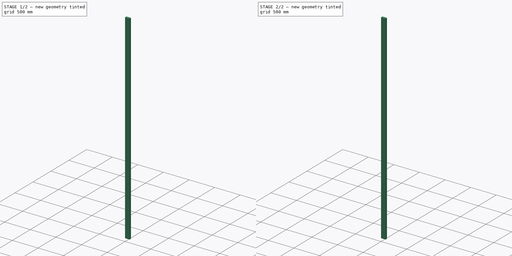
[diagram: build sequence overview — one tinted view per stage of 2, left to right]
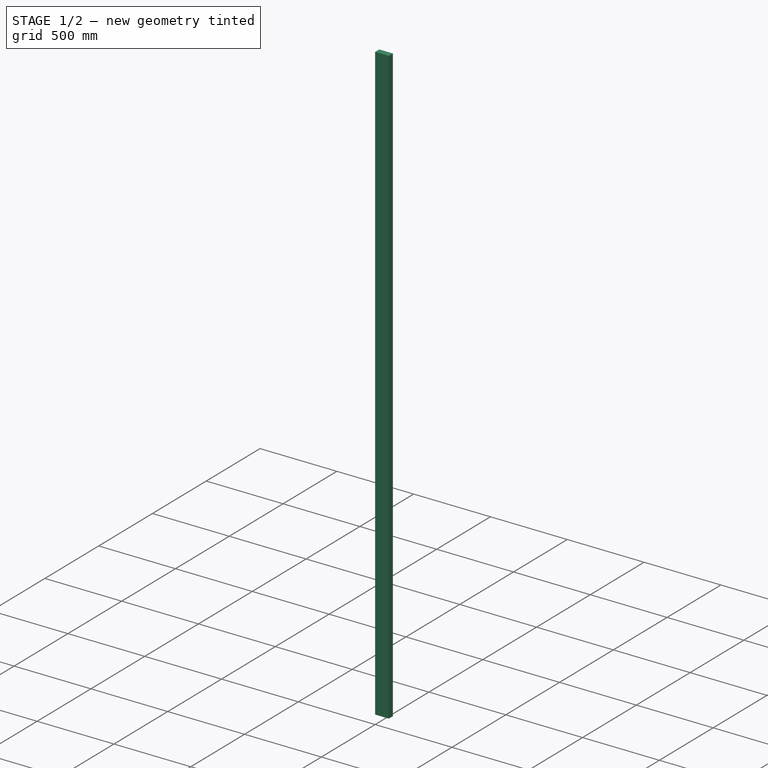
[diagram: stage 1 of 2 — iso view after this stage's code; geometry added in this stage tinted green]
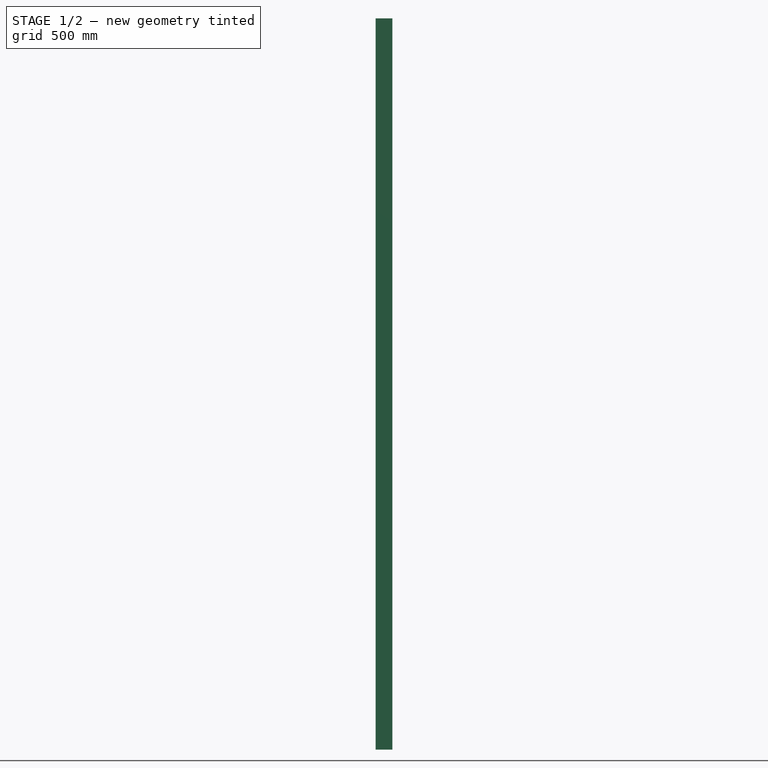
[diagram: stage 1 of 2 — front view after this stage's code; geometry added in this stage tinted green]
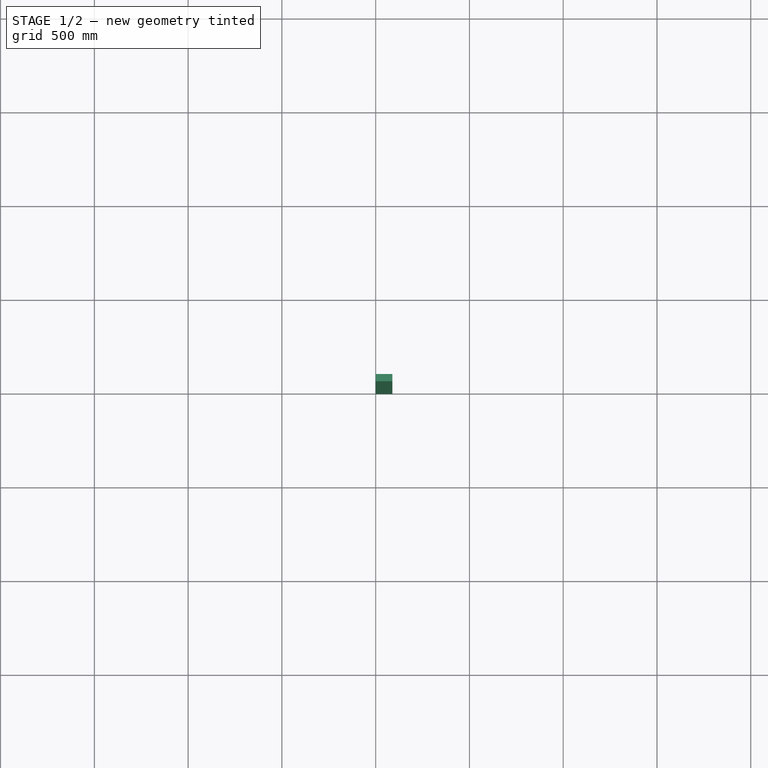
[diagram: stage 1 of 2 — top view after this stage's code; geometry added in this stage tinted green]
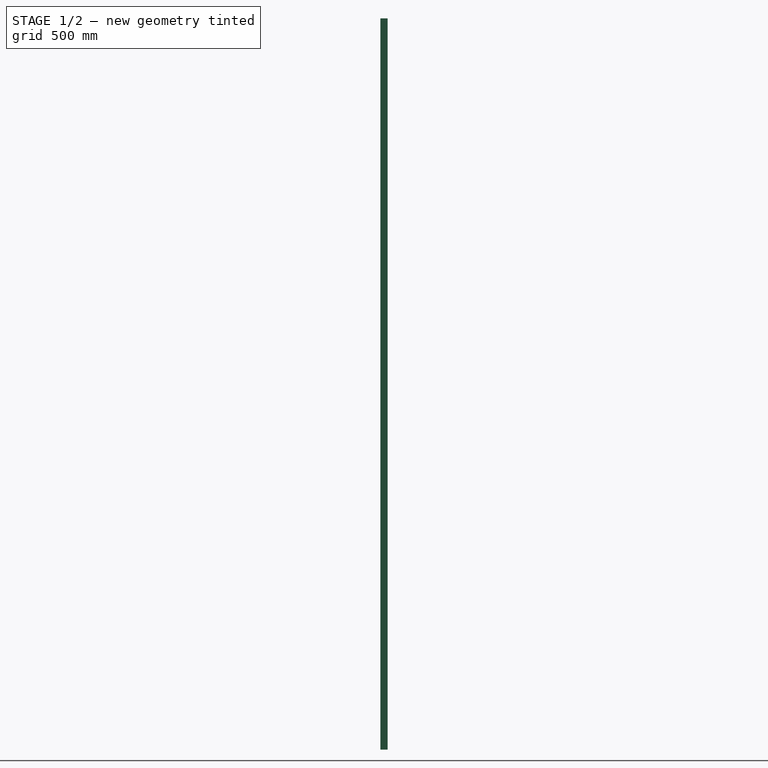
[diagram: stage 1 of 2 — right view after this stage's code; geometry added in this stage tinted green]
FCSTD DOCUMENT  (FreeCAD 2023.131R26244 +5365 (Git))
Label: Frame
License: All rights reserved
LicenseURL: http://en.wikipedia.org/wiki/All_rights_reserved
objects: App::FeaturePython×70, Part::FeaturePython×43, App::Link×19, Sketcher::SketchObject×3, PartDesign::Pad×3, PartDesign::Body×3, App::Part×3
note: 58 computed .brp shape members not serialized (recipe doc carries the construction recipe); baked Part::Feature solids carry a one-line shape summary decoded from their .brp
EXTERNAL_REF file=../1110z-Extrusions-Timbers/verticalTimber.FCStd obj=Part
EXTERNAL_REF file=../1112z-Plates/woodJoiningPlate.FCStd obj=Part

FEATURE [App::Link] Link  label="verticalTimber-Part"
  AutoLinkLabel = false
  AutoPlacement = true
  LinkedObject = -> <external ../1110z-Extrusions-Timbers/verticalTimber.FCStd>#Part
  SyncGroupVisibility = false
  TreeRank = 0
  _LinkOwner = 4
  _LinkVersion = 1
FEATURE [App::Link] Link001  label="verticalTimber-Part001"
  AutoLinkLabel = false
  AutoPlacement = true
  LinkPlacement = pos=(1371.6,-2.66e-14,-1.179e-13) rot=(0,0,1;0rad)
  LinkedObject = -> <external ../1110z-Extrusions-Timbers/verticalTimber.FCStd>#Part
  Placement = pos=(1371.6,-2.66e-14,-1.179e-13) rot=(0,0,1;0rad)
  SyncGroupVisibility = false
  TreeRank = 0
  _LinkOwner = 4
  _LinkVersion = 1
FEATURE [App::Link] Link002  label="verticalTimber-Part002"
  AutoLinkLabel = false
  AutoPlacement = true
  LinkPlacement = pos=(2679.7,-1.108e-13,-1.502e-13) rot=(0,0,1;0rad)
  LinkedObject = -> <external ../1110z-Extrusions-Timbers/verticalTimber.FCStd>#Part
  Placement = pos=(2679.7,-1.108e-13,-1.502e-13) rot=(0,0,1;0rad)
  SyncGroupVisibility = false
  TreeRank = 0
  _LinkOwner = 4
  _LinkVersion = 1
FEATURE [App::Link] Link003  label="verticalTimber-Part003"
  AutoLinkLabel = false
  AutoPlacement = true
  LinkPlacement = pos=(3810,-1.05e-13,-3.575e-13) rot=(0,0,1;0rad)
  LinkedObject = -> <external ../1110z-Extrusions-Timbers/verticalTimber.FCStd>#Part
  Placement = pos=(3810,-1.05e-13,-3.575e-13) rot=(0,0,1;0rad)
  SyncGroupVisibility = false
  TreeRank = 0
  _LinkOwner = 4
  _LinkVersion = 1
FEATURE [App::Link] Link004  label="verticalTimber-Part004"
  AutoLinkLabel = false
  AutoPlacement = true
  LinkPlacement = pos=(-0.620478,-419.1,0.0255773) rot=(0,-1,0;6.28261rad)
  LinkedObject = -> <external ../1110z-Extrusions-Timbers/verticalTimber.FCStd>#Part
  Placement = pos=(-0.620478,-419.1,0.0255773) rot=(0,-1,0;6.28261rad)
  SyncGroupVisibility = false
  TreeRank = 0
  _LinkOwner = 4
  _LinkVersion = 1
FEATURE [App::Link] Link005  label="verticalTimber-Part005"
  AutoLinkLabel = false
  AutoPlacement = true
  LinkPlacement = pos=(-3.01966,-1370.88,-2.491e-13) rot=(0,0,1;0.003066rad)
  LinkedObject = -> <external ../1110z-Extrusions-Timbers/verticalTimber.FCStd>#Part
  Placement = pos=(-3.01966,-1370.88,-2.491e-13) rot=(0,0,1;0.003066rad)
  SyncGroupVisibility = false
  TreeRank = 0
  _LinkOwner = 4
  _LinkVersion = 1
FEATURE [App::Link] Link006  label="verticalTimber-Part006"
  AutoLinkLabel = false
  AutoPlacement = true
  LinkPlacement = pos=(3810,-419.1,-2.15192) rot=(0,1,0;0.000571rad)
  LinkedObject = -> <external ../1110z-Extrusions-Timbers/verticalTimber.FCStd>#Part
  Placement = pos=(3810,-419.1,-2.15192) rot=(0,1,0;0.000571rad)
  SyncGroupVisibility = false
  TreeRank = 0
  _LinkOwner = 4
  _LinkVersion = 1
FEATURE [App::Link] Link007  label="verticalTimber-Part007"
  AutoLinkLabel = false
  AutoPlacement = true
  LinkPlacement = pos=(3814.3,-1359.17,4.7742e-12) rot=(0,-3e-06,1;0.003066rad)
  LinkedObject = -> <external ../1110z-Extrusions-Timbers/verticalTimber.FCStd>#Part
  Placement = pos=(3814.3,-1359.17,4.7742e-12) rot=(0,-3e-06,1;0.003066rad)
  SyncGroupVisibility = false
  TreeRank = 0
  _LinkOwner = 4
  _LinkVersion = 1
FEATURE [App::Link] Link008  label="verticalTimber-Part008"
  AutoLinkLabel = false
  AutoPlacement = true
  LinkPlacement = pos=(38.1,-3416.3,-2.5181e-11) rot=(0,0,-1;4.71239rad)
  LinkedObject = -> <external ../1110z-Extrusions-Timbers/verticalTimber.FCStd>#Part
  Placement = pos=(38.1,-3416.3,-2.5181e-11) rot=(0,0,-1;4.71239rad)
  SyncGroupVisibility = false
  TreeRank = 0
  _LinkOwner = 4
  _LinkVersion = 1
FEATURE [App::Link] Link009  label="verticalTimber-Part009"
  AutoLinkLabel = false
  AutoPlacement = true
  LinkPlacement = pos=(3886.2,-3327.4,3.5941e-11) rot=(0,0,-1;1.5708rad)
  LinkedObject = -> <external ../1110z-Extrusions-Timbers/verticalTimber.FCStd>#Part
  Placement = pos=(3886.2,-3327.4,3.5941e-11) rot=(0,0,-1;1.5708rad)
  SyncGroupVisibility = false
  TreeRank = 0
  _LinkOwner = 4
  _LinkVersion = 1
FEATURE [Part::FeaturePython] Parts  # WARN: FeaturePython — macro-defined, semantics opaque (R4)
  FixShape = 1
  Group = -> [Link,Link001,Link002,Link003,Link004,Link005,Link006,Link007,Link008,Link009]
  GroupMode = 0
  InvalidShape = false
  TreeRank = 0
  ValidateShape = false
  _LinkVersion = 1
FEATURE [App::FeaturePython] Constraints001  # WARN: FeaturePython — macro-defined, semantics opaque (R4)
  TreeRank = 0
  _LinkVersion = 1
  _Version = 1
FEATURE [App::FeaturePython] Elements001  # WARN: FeaturePython — macro-defined, semantics opaque (R4)
  TreeRank = 0
  _LinkVersion = 1
FEATURE [App::FeaturePython] Constraints002  # WARN: FeaturePython — macro-defined, semantics opaque (R4)
  TreeRank = 0
  _LinkVersion = 1
  _Version = 1
FEATURE [App::FeaturePython] Elements002  # WARN: FeaturePython — macro-defined, semantics opaque (R4)
  TreeRank = 0
  _LinkVersion = 1
FEATURE [Sketcher::SketchObject] Sketch
  ArcFitTolerance = 1e-06
  ExternalBSplineMaxDegree = 5
  ExternalBSplineTolerance = 0.0001
  FixShape = 1
  FullyConstrained = true
  InternalTolerance = 1e-06
  InvalidShape = false
  MakeInternals = false
  MapMode = 2
  TreeRank = 11
  ValidateShape = false
  sketch-geometry (4):
    g0: LineSegment StartX=0 StartY=0 StartZ=0 EndX=88.9 EndY=0 EndZ=0
    g1: LineSegment StartX=88.9 StartY=0 StartZ=0 EndX=88.9 EndY=38.1 EndZ=0
    g2: LineSegment StartX=88.9 StartY=38.1 StartZ=0 EndX=0 EndY=38.1 EndZ=0
    g3: LineSegment StartX=0 StartY=38.1 StartZ=0 EndX=0 EndY=0 EndZ=0
  constraints (11):
    c: Coincident(g0,g1)
    c: Coincident(g1,g2)
    c: Coincident(g2,g3)
    c: Coincident(g3,g0)
    c: Horizontal(g0)
    c: Horizontal(g2)
    c: Vertical(g1)
    c: Vertical(g3)
    c: Coincident(g0,g-1)
    c: DistanceY(g1,g1) = 38.1
    c: DistanceX(g2,g2) = 88.9
FEATURE [PartDesign::Pad] Pad
  AddSubType = 0
  AlongSketchNormal = false
  AutoTaperInnerAngle = true
  CheckUpToFaceLimits = true
  ClaimChildren = false
  Direction = (0,0,1)
  Fit = 0
  FitJoin = 0
  FixShape = 1
  InnerFit = 0
  InnerFitJoin = 0
  InvalidShape = false
  Length = 3479.8
  Length2 = 100
  Linearize = true
  NewSolid = false
  Profile = -> Sketch
  Suppress = false
  TaperInnerAngle = 0
  TaperInnerAngleRev = 0
  TreeRank = 12
  Type = 0
  ValidateShape = false
  _ProfileBasedVersion = 1
FEATURE [PartDesign::Body] Body
  AutoGroupSolids = false
  ClaimAllChildren = false
  ExportMode = 0
  FixShape = 1
  Group = -> [Sketch,Pad]
  InvalidShape = false
  Origin = -> Origin
  Tip = -> Pad
  TreeRank = 10
  ValidateShape = false
  _ExportChildren = -> [Pad]
  _GroupVersion = 1
FEATURE [App::Part] Part  label="topTimberPart"
  ClaimAllChildren = false
  ExportMode = 1
  Group = -> [Body]
  Origin = -> Origin001
  Placement = pos=(0,38.0997,2171.7) rot=(1,0,0;1.5708rad)
  TreeRank = 15
  _ExportChildren = -> [Body]
  _GroupVersion = 1
FEATURE [Sketcher::SketchObject] Sketch001
  ArcFitTolerance = 1e-06
  ExternalBSplineMaxDegree = 5
  ExternalBSplineTolerance = 0.0001
  FixShape = 1
  FullyConstrained = true
  InternalTolerance = 1e-06
  InvalidShape = false
  MakeInternals = false
  MapMode = 2
  TreeRank = 11
  ValidateShape = false
  sketch-geometry (4):
    g0: LineSegment StartX=0 StartY=0 StartZ=0 EndX=88.9 EndY=0 EndZ=0
    g1: LineSegment StartX=88.9 StartY=0 StartZ=0 EndX=88.9 EndY=38.1 EndZ=0
    g2: LineSegment StartX=88.9 StartY=38.1 StartZ=0 EndX=0 EndY=38.1 EndZ=0
    g3: LineSegment StartX=0 StartY=38.1 StartZ=0 EndX=0 EndY=0 EndZ=0
  constraints (11):
    c: Coincident(g0,g1)
    c: Coincident(g1,g2)
    c: Coincident(g2,g3)
    c: Coincident(g3,g0)
    c: Horizontal(g0)
    c: Horizontal(g2)
    c: Vertical(g1)
    c: Vertical(g3)
    c: Coincident(g0,g-1)
    c: DistanceY(g1,g1) = 38.1
    c: DistanceX(g2,g2) = 88.9
FEATURE [PartDesign::Pad] Pad001
  AddSubType = 0
  AlongSketchNormal = false
  AutoTaperInnerAngle = true
  CheckUpToFaceLimits = true
  ClaimChildren = false
  Direction = (0,0,1)
  Fit = 0
  FitJoin = 0
  FixShape = 1
  InnerFit = 0
  InnerFitJoin = 0
  InvalidShape = false
  Length = 3479.8
  Length2 = 100
  Linearize = true
  NewSolid = false
  Profile = -> Sketch001
  Suppress = false
  TaperInnerAngle = 0
  TaperInnerAngleRev = 0
  TreeRank = 12
  Type = 0
  ValidateShape = false
  _ProfileBasedVersion = 1
FEATURE [PartDesign::Body] Body001
  AutoGroupSolids = false
  ClaimAllChildren = false
  ExportMode = 0
  FixShape = 1
  Group = -> [Sketch001,Pad001]
  InvalidShape = false
  Origin = -> Origin002
  Tip = -> Pad001
  TreeRank = 16
  ValidateShape = false
  _ExportChildren = -> [Pad001]
  _GroupVersion = 1
FEATURE [App::Part] Part001  label="topTimberPart001"
  ClaimAllChildren = false
  ExportMode = 1
  Group = -> [Body001]
  Origin = -> Origin003
  Placement = pos=(3810,38.0993,2171.7) rot=(1,0,0;1.5708rad)
  TreeRank = 18
  _ExportChildren = -> [Body001]
  _GroupVersion = 1
FEATURE [Part::FeaturePython] Parts001  # WARN: FeaturePython — macro-defined, semantics opaque (R4)
  FixShape = 1
  Group = -> [Part,Part001]
  GroupMode = 0
  InvalidShape = false
  TreeRank = 0
  ValidateShape = false
  _LinkVersion = 1
FEATURE [Part::FeaturePython] Assembly001  label="Frame-topTimber"  # WARN: FeaturePython — macro-defined, semantics opaque (R4)
  AutoRelax = true
  BuildShape = 0
  FixShape = 1
  Freeze = false
  Group = -> [Constraints001,Elements001,Parts001]
  InvalidShape = false
  Placement = pos=(0.000195313,2.3048e-05,0.000147197) rot=(0,0,1;0rad)
  TreeRank = 0
  ValidateShape = false
  Verbose = false
  _LinkVersion = 1
  _SolverType = 1
  _Version = 1
FEATURE [Sketcher::SketchObject] Sketch002
  ArcFitTolerance = 1e-06
  ExternalBSplineMaxDegree = 5
  ExternalBSplineTolerance = 0.0001
  FixShape = 1
  FullyConstrained = true
  InternalTolerance = 1e-06
  InvalidShape = false
  MakeInternals = false
  MapMode = 2
  TreeRank = 32
  ValidateShape = false
  sketch-geometry (4):
    g0: LineSegment StartX=0 StartY=0 StartZ=0 EndX=88.9 EndY=0 EndZ=0
    g1: LineSegment StartX=88.9 StartY=0 StartZ=0 EndX=88.9 EndY=38.1 EndZ=0
    g2: LineSegment StartX=88.9 StartY=38.1 StartZ=0 EndX=0 EndY=38.1 EndZ=0
    g3: LineSegment StartX=0 StartY=38.1 StartZ=0 EndX=0 EndY=0 EndZ=0
  constraints (11):
    c: Coincident(g0,g1)
    c: Coincident(g1,g2)
    c: Coincident(g2,g3)
    c: Coincident(g3,g0)
    c: Horizontal(g0)
    c: Horizontal(g2)
    c: Vertical(g1)
    c: Vertical(g3)
    c: Coincident(g0,g-1)
    c: DistanceY(g1,g1) = 38.1
    c: DistanceX(g0,g0) = 88.9
FEATURE [PartDesign::Pad] Pad002
  AddSubType = 0
  AlongSketchNormal = false
  AutoTaperInnerAngle = true
  CheckUpToFaceLimits = true
  ClaimChildren = false
  Direction = (0,0,1)
  Fit = 0
  FitJoin = 0
  FixShape = 1
  InnerFit = 0
  InnerFitJoin = 0
  InvalidShape = false
  Length = 3898.9
  Length2 = 100
  Linearize = true
  NewSolid = false
  Profile = -> Sketch002
  Suppress = false
  TaperInnerAngle = 0
  TaperInnerAngleRev = 0
  TreeRank = 33
  Type = 0
  ValidateShape = false
  _ProfileBasedVersion = 1
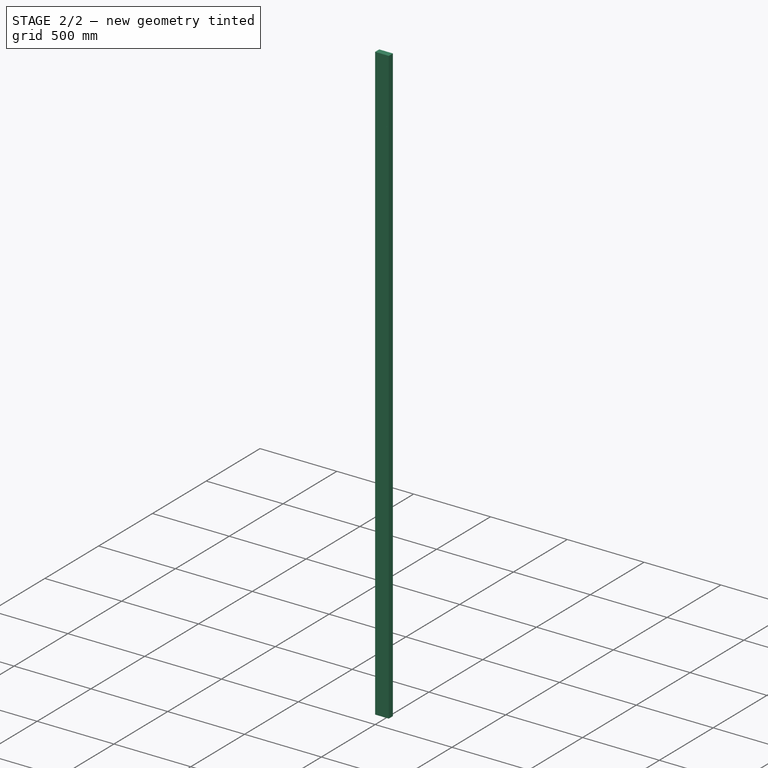
[diagram: stage 2 of 2 — iso view after this stage's code; geometry added in this stage tinted green]
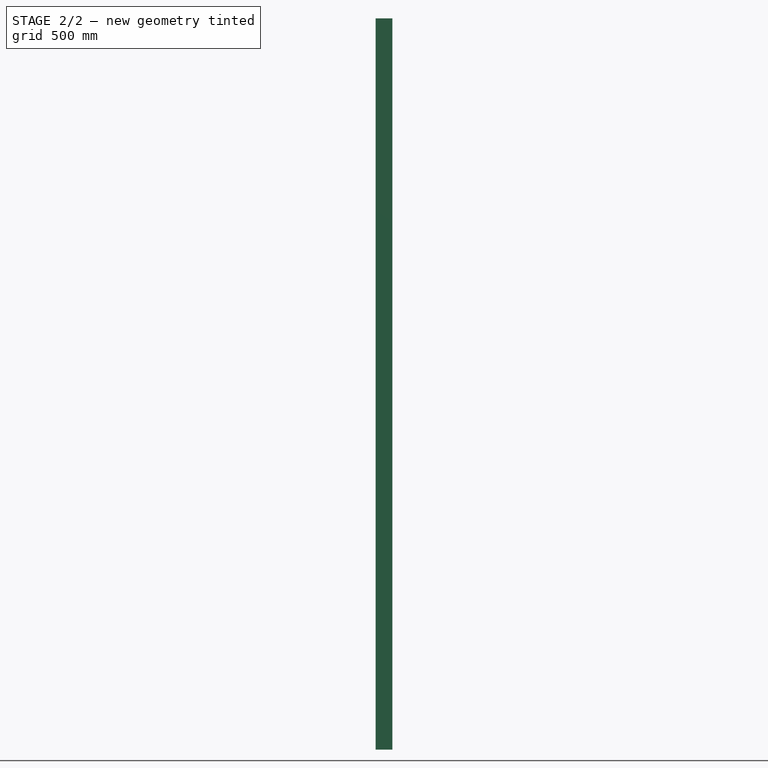
[diagram: stage 2 of 2 — front view after this stage's code; geometry added in this stage tinted green]
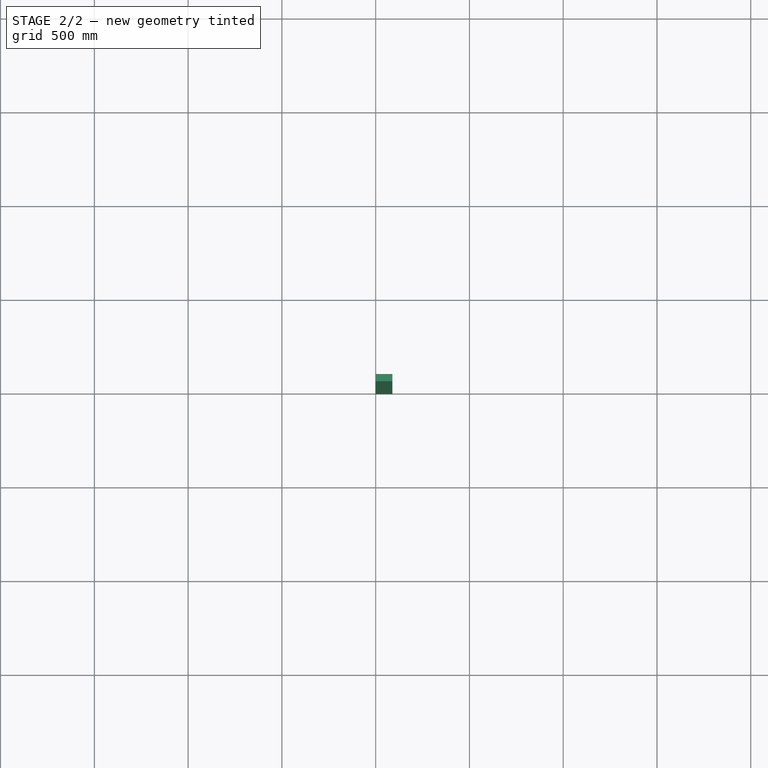
[diagram: stage 2 of 2 — top view after this stage's code; geometry added in this stage tinted green]
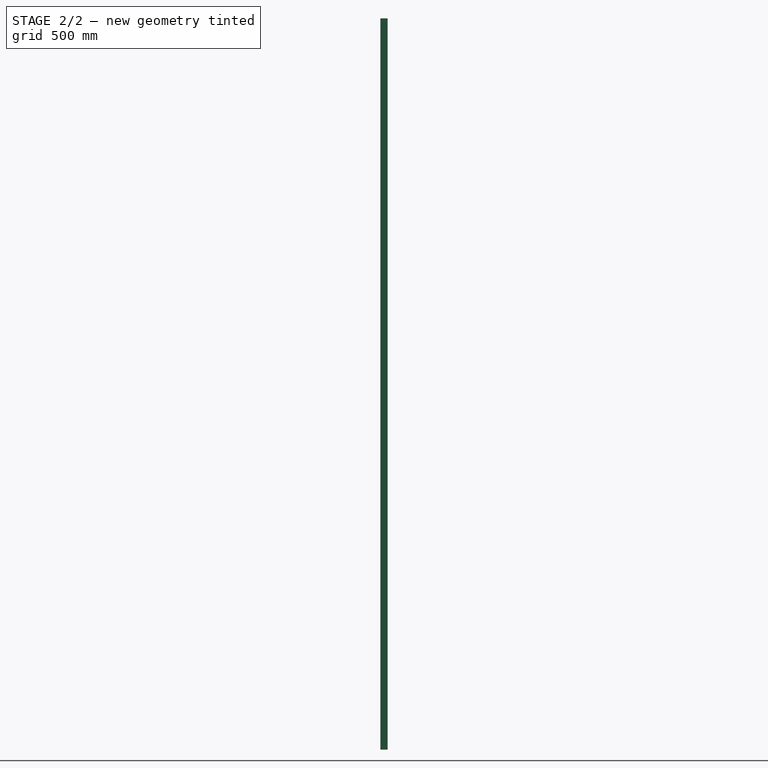
[diagram: stage 2 of 2 — right view after this stage's code; geometry added in this stage tinted green]
FEATURE [PartDesign::Body] Body002
  AutoGroupSolids = false
  ClaimAllChildren = false
  ExportMode = 0
  FixShape = 1
  Group = -> [Sketch002,Pad002]
  InvalidShape = false
  Origin = -> Origin005
  Tip = -> Pad002
  TreeRank = 31
  ValidateShape = false
  _ExportChildren = -> [Pad002]
  _GroupVersion = 1
FEATURE [App::Part] Part002  label="Frame-backTimber-Part"
  ClaimAllChildren = false
  ExportMode = 1
  Group = -> [Body002]
  Origin = -> Origin004
  Placement = pos=(0.000258887,-57.1497,2171.7) rot=(0,1,0;1.5708rad)
  TreeRank = 21
  _ExportChildren = -> [Body002]
  _GroupVersion = 1
FEATURE [App::Link] Link010  label="woodJoiningPlate-Part"
  AutoLinkLabel = false
  AutoPlacement = true
  LinkPlacement = pos=(0,-0.000149882,1257.3) rot=(1,0,0;1.5708rad)
  LinkedObject = -> <external ../1112z-Plates/woodJoiningPlate.FCStd>#Part
  Placement = pos=(0,-0.000149882,1257.3) rot=(1,0,0;1.5708rad)
  SyncGroupVisibility = false
  TreeRank = 34
  _LinkOwner = 157
  _LinkVersion = 1
FEATURE [App::Link] Link011  label="woodJoiningPlate-Part001"
  AutoLinkLabel = false
  AutoPlacement = true
  LinkPlacement = pos=(1003.3,-0.000149882,1257.3) rot=(1,0,0;1.5708rad)
  LinkedObject = -> <external ../1112z-Plates/woodJoiningPlate.FCStd>#Part
  Placement = pos=(1003.3,-0.000149882,1257.3) rot=(1,0,0;1.5708rad)
  SyncGroupVisibility = false
  TreeRank = 35
  _LinkOwner = 157
  _LinkVersion = 1
FEATURE [App::Link] Link012  label="woodJoiningPlate-Part002"
  AutoLinkLabel = false
  AutoPlacement = true
  LinkPlacement = pos=(2679.7,-0.000149882,1257.3) rot=(1,0,0;1.5708rad)
  LinkedObject = -> <external ../1112z-Plates/woodJoiningPlate.FCStd>#Part
  Placement = pos=(2679.7,-0.000149882,1257.3) rot=(1,0,0;1.5708rad)
  SyncGroupVisibility = false
  TreeRank = 36
  _LinkOwner = 157
  _LinkVersion = 1
FEATURE [App::Link] Link013  label="woodJoiningPlate-Part003"
  AutoLinkLabel = false
  AutoPlacement = true
  LinkPlacement = pos=(4.54189e-06,38.0998,1295.4) rot=(-0.57735,0.57735,0.57735;4.18879rad)
  LinkedObject = -> <external ../1112z-Plates/woodJoiningPlate.FCStd>#Part
  Placement = pos=(4.54189e-06,38.0998,1295.4) rot=(-0.57735,0.57735,0.57735;4.18879rad)
  SyncGroupVisibility = false
  TreeRank = 37
  _LinkOwner = 157
  _LinkVersion = 1
FEATURE [App::Link] Link014  label="woodJoiningPlate-Part004"
  AutoLinkLabel = false
  AutoPlacement = true
  LinkPlacement = pos=(-0.000372434,-1365.25,1752.6) rot=(0,-1,0;1.5708rad)
  LinkedObject = -> <external ../1112z-Plates/woodJoiningPlate.FCStd>#Part
  Placement = pos=(-0.000372434,-1365.25,1752.6) rot=(0,-1,0;1.5708rad)
  SyncGroupVisibility = false
  TreeRank = 38
  _LinkOwner = 157
  _LinkVersion = 1
FEATURE [App::Link] Link015  label="woodJoiningPlate-Part005"
  AutoLinkLabel = false
  AutoPlacement = true
  LinkPlacement = pos=(3441.7,-0.000135604,1257.3) rot=(1,0,0;1.5708rad)
  LinkedObject = -> <external ../1112z-Plates/woodJoiningPlate.FCStd>#Part
  Placement = pos=(3441.7,-0.000135604,1257.3) rot=(1,0,0;1.5708rad)
  SyncGroupVisibility = false
  TreeRank = 39
  _LinkOwner = 157
  _LinkVersion = 1
FEATURE [App::Link] Link016  label="woodJoiningPlate-Part006"
  AutoLinkLabel = false
  AutoPlacement = true
  LinkPlacement = pos=(3917.95,38.0994,1295.4) rot=(-0.57735,0.57735,0.57735;4.18879rad)
  LinkedObject = -> <external ../1112z-Plates/woodJoiningPlate.FCStd>#Part
  Placement = pos=(3917.95,38.0994,1295.4) rot=(-0.57735,0.57735,0.57735;4.18879rad)
  SyncGroupVisibility = false
  TreeRank = 40
  _LinkOwner = 157
  _LinkVersion = 1
FEATURE [App::Link] Link017  label="woodJoiningPlate-Part007"
  AutoLinkLabel = false
  AutoPlacement = true
  LinkPlacement = pos=(-0.000352752,-2959.1,1295.4) rot=(-0.57735,0.57735,0.57735;4.18879rad)
  LinkedObject = -> <external ../1112z-Plates/woodJoiningPlate.FCStd>#Part
  Placement = pos=(-0.000352752,-2959.1,1295.4) rot=(-0.57735,0.57735,0.57735;4.18879rad)
  SyncGroupVisibility = false
  TreeRank = 41
  _LinkOwner = 157
  _LinkVersion = 1
FEATURE [App::Link] Link018  label="woodJoiningPlate-Part008"
  AutoLinkLabel = false
  AutoPlacement = true
  LinkPlacement = pos=(3921.12,-1358.9,1758.95) rot=(0,1,0;4.71239rad)
  LinkedObject = -> <external ../1112z-Plates/woodJoiningPlate.FCStd>#Part
  Placement = pos=(3921.12,-1358.9,1758.95) rot=(0,1,0;4.71239rad)
  SyncGroupVisibility = false
  TreeRank = 42
  _LinkOwner = 157
  _LinkVersion = 1
FEATURE [Part::FeaturePython] Assembly  label="Frame-verticalTimber-Assembly"  # WARN: FeaturePython — macro-defined, semantics opaque (R4)
  AutoRelax = true
  BuildShape = 0
  FixShape = 1
  Freeze = false
  Group = -> [Constraints,Elements,Parts,Relations]
  InvalidShape = false
  TreeRank = 0
  ValidateShape = false
  Verbose = false
  _LinkVersion = 1
  _SolverType = 1
  _Version = 1
FEATURE [App::FeaturePython] Constraints  # WARN: FeaturePython — macro-defined, semantics opaque (R4)
  Group = -> [Constraint,Constraint002,Constraint004,Constraint005,Constraint006,Constraint007,Constraint012,Constraint013,Constraint015,Constraint016,Constraint017,Constraint018,Constraint019,Constraint020,Constraint021,Constraint022,Constraint023]
  TreeRank = 0
  _LinkVersion = 1
  _Version = 1
FEATURE [App::FeaturePython] Elements  # WARN: FeaturePython — macro-defined, semantics opaque (R4)
  Group = -> [_Element,_Element001,_Element002,_Element003,_Element004,_Element005,_Element006,_Element007,_Element008,_Element009,_Element010,_Element011,_Element012,_Element013,_Element014,_Element015,_Element016,_Element017,_Element018,_Element019,_Element020,_Element021,_Element022,_Element023,_Element024,_Element025,_Element026,_Element027,_Element028,_Element029,_Element030,_Element031,_Element032,+4 more]
  TreeRank = 0
  _LinkVersion = 1
FEATURE [App::FeaturePython] Constraint  label="Locked"  # WARN: FeaturePython — macro-defined, semantics opaque (R4)
  Disabled = false
  Group = -> [ElementLink]
  TreeRank = 0
  _ConstraintType = 0
  _LinkVersion = 1
  _Parent = -> Constraints
FEATURE [App::FeaturePython] ElementLink  label="_Element"  # link proxy (typed FeaturePython)
  LinkTransform = true
  LinkedObject = -> _Element
  TreeRank = 0
  _LinkVersion = 1
  _Parent = -> Constraint
FEATURE [Part::FeaturePython] _Element  # link proxy (typed FeaturePython)
  Detach = false
  FixShape = 1
  InvalidShape = false
  LinkTransform = true
  LinkedObject = -> Link [Body.Pad.Face5]
  TreeRank = 0
  ValidateShape = false
  _LinkVersion = 1
  _Parent = -> Elements
FEATURE [Part::FeaturePython] _Element001  # link proxy (typed FeaturePython)
  Detach = false
  FixShape = 1
  InvalidShape = false
  LinkTransform = true
  LinkedObject = -> Link004 [Body.Pad.Face5]
  TreeRank = 0
  ValidateShape = false
  _LinkVersion = 1
  _Parent = -> Elements
FEATURE [Part::FeaturePython] _Element002  # link proxy (typed FeaturePython)
  Detach = false
  FixShape = 1
  InvalidShape = false
  LinkTransform = true
  LinkedObject = -> Link005 [Body.Pad.Face5]
  TreeRank = 0
  ValidateShape = false
  _LinkVersion = 1
  _Parent = -> Elements
FEATURE [Part::FeaturePython] _Element003  # link proxy (typed FeaturePython)
  Detach = false
  FixShape = 1
  InvalidShape = false
  LinkTransform = true
  LinkedObject = -> Link008 [Body.Pad.Face5]
  TreeRank = 0
  ValidateShape = false
  _LinkVersion = 1
  _Parent = -> Elements
FEATURE [Part::FeaturePython] _Element004  # link proxy (typed FeaturePython)
  Detach = false
  FixShape = 1
  InvalidShape = false
  LinkTransform = true
  LinkedObject = -> Link001 [Body.Pad.Face5]
  TreeRank = 0
  ValidateShape = false
  _LinkVersion = 1
  _Parent = -> Elements
FEATURE [Part::FeaturePython] _Element005  # link proxy (typed FeaturePython)
  Detach = false
  FixShape = 1
  InvalidShape = false
  LinkTransform = true
  LinkedObject = -> Link002 [Body.Pad.Face5]
  TreeRank = 0
  ValidateShape = false
  _LinkVersion = 1
  _Parent = -> Elements
FEATURE [Part::FeaturePython] _Element006  # link proxy (typed FeaturePython)
  Detach = false
  FixShape = 1
  InvalidShape = false
  LinkTransform = true
  LinkedObject = -> Link003 [Body.Pad.Face5]
  TreeRank = 0
  ValidateShape = false
  _LinkVersion = 1
  _Parent = -> Elements
FEATURE [Part::FeaturePython] _Element007  # link proxy (typed FeaturePython)
  Detach = false
  FixShape = 1
  InvalidShape = false
  LinkTransform = true
  LinkedObject = -> Link006 [Body.Pad.Face5]
  TreeRank = 0
  ValidateShape = false
  _LinkVersion = 1
  _Parent = -> Elements
FEATURE [Part::FeaturePython] _Element008  # link proxy (typed FeaturePython)
  Detach = false
  FixShape = 1
  InvalidShape = false
  LinkTransform = true
  LinkedObject = -> Link007 [Body.Pad.Face5]
  TreeRank = 0
  ValidateShape = false
  _LinkVersion = 1
  _Parent = -> Elements
FEATURE [Part::FeaturePython] _Element009  # link proxy (typed FeaturePython)
  Detach = false
  FixShape = 1
  InvalidShape = false
  LinkTransform = true
  LinkedObject = -> Link009 [Body.Pad.Face5]
  TreeRank = 0
  ValidateShape = false
  _LinkVersion = 1
  _Parent = -> Elements
FEATURE [App::FeaturePython] Constraint002  label="PlaneAlignment001"  # WARN: FeaturePython — macro-defined, semantics opaque (R4)
  Angle = 0
  AnglePitch = 0
  AngleRoll = 0
  Cascade = false
  Disabled = false
  Group = -> [ElementLink011,ElementLink012,ElementLink013,ElementLink014]
  LockAngle = false
  TreeRank = 0
  _ConstraintType = 37
  _LinkVersion = 1
  _Parent = -> Constraints
FEATURE [App::FeaturePython] ElementLink011  label="_Element010"  # link proxy (typed FeaturePython)
  LinkTransform = true
  LinkedObject = -> _Element010
  TreeRank = 0
  _LinkVersion = 1
  _Parent = -> Constraint002
FEATURE [Part::FeaturePython] _Element010  # link proxy (typed FeaturePython)
  Detach = false
  FixShape = 1
  InvalidShape = false
  LinkTransform = true
  LinkedObject = -> Link003 [Body.Pad.Face3]
  TreeRank = 0
  ValidateShape = false
  _LinkVersion = 1
  _Parent = -> Elements
FEATURE [App::FeaturePython] ElementLink012  label="_Element011"  # link proxy (typed FeaturePython)
  LinkTransform = true
  LinkedObject = -> _Element011
  TreeRank = 0
  _LinkVersion = 1
  _Parent = -> Constraint002
FEATURE [Part::FeaturePython] _Element011  # link proxy (typed FeaturePython)
  Detach = false
  FixShape = 1
  InvalidShape = false
  LinkTransform = true
  LinkedObject = -> Link002 [Body.Pad.Face3]
  TreeRank = 0
  ValidateShape = false
  _LinkVersion = 1
  _Parent = -> Elements
FEATURE [App::FeaturePython] ElementLink013  label="_Element012"  # link proxy (typed FeaturePython)
  LinkTransform = true
  LinkedObject = -> _Element012
  TreeRank = 0
  _LinkVersion = 1
  _Parent = -> Constraint002
FEATURE [Part::FeaturePython] _Element012  # link proxy (typed FeaturePython)
  Detach = false
  FixShape = 1
  InvalidShape = false
  LinkTransform = true
  LinkedObject = -> Link001 [Body.Pad.Face3]
  TreeRank = 0
  ValidateShape = false
  _LinkVersion = 1
  _Parent = -> Elements
FEATURE [App::FeaturePython] ElementLink014  label="_Element013"  # link proxy (typed FeaturePython)
  LinkTransform = true
  LinkedObject = -> _Element013
  TreeRank = 0
  _LinkVersion = 1
  _Parent = -> Constraint002
FEATURE [Part::FeaturePython] _Element013  # link proxy (typed FeaturePython)
  Detach = false
  FixShape = 1
  InvalidShape = false
  LinkTransform = true
  LinkedObject = -> Link [Body.Pad.Face3]
  TreeRank = 0
  ValidateShape = false
  _LinkVersion = 1
  _Parent = -> Elements
FEATURE [Part::FeaturePython] _Element014  # link proxy (typed FeaturePython)
  Detach = false
  FixShape = 1
  InvalidShape = false
  LinkTransform = true
  LinkedObject = -> Link004 [Body.Pad.Face3]
  TreeRank = 0
  ValidateShape = false
  _LinkVersion = 1
  _Parent = -> Elements
FEATURE [Part::FeaturePython] _Element015  # link proxy (typed FeaturePython)
  Detach = false
  FixShape = 1
  InvalidShape = false
  LinkTransform = true
  LinkedObject = -> Link006 [Body.Pad.Face3]
  TreeRank = 0
  ValidateShape = false
  _LinkVersion = 1
  _Parent = -> Elements
FEATURE [App::FeaturePython] Constraint004  label="PlaneAlignment003"  # WARN: FeaturePython — macro-defined, semantics opaque (R4)
  Angle = 0
  AnglePitch = 0
  AngleRoll = 0
  Cascade = false
  Disabled = false
  Group = -> [ElementLink017,ElementLink018]
  LockAngle = false
  TreeRank = 0
  _ConstraintType = 37
  _LinkVersion = 1
  _Parent = -> Constraints
FEATURE [App::FeaturePython] ElementLink017  label="_Element016"  # link proxy (typed FeaturePython)
  LinkTransform = true
  LinkedObject = -> _Element016
  TreeRank = 0
  _LinkVersion = 1
  _Parent = -> Constraint004
FEATURE [Part::FeaturePython] _Element016  # link proxy (typed FeaturePython)
  Detach = false
  FixShape = 1
  InvalidShape = false
  LinkTransform = true
  LinkedObject = -> Link005 [Body.Pad.Face3]
  TreeRank = 0
  ValidateShape = false
  _LinkVersion = 1
  _Parent = -> Elements
FEATURE [App::FeaturePython] ElementLink018  label="_Element017"  # link proxy (typed FeaturePython)
  LinkTransform = true
  LinkedObject = -> _Element017
  TreeRank = 0
  _LinkVersion = 1
  _Parent = -> Constraint004
FEATURE [Part::FeaturePython] _Element017  # link proxy (typed FeaturePython)
  Detach = false
  FixShape = 1
  InvalidShape = false
  LinkTransform = true
  LinkedObject = -> Link007 [Body.Pad.Face3]
  TreeRank = 0
  ValidateShape = false
  _LinkVersion = 1
  _Parent = -> Elements
FEATURE [Part::FeaturePython] _Element018  # link proxy (typed FeaturePython)
  Detach = false
  FixShape = 1
  InvalidShape = false
  LinkTransform = true
  LinkedObject = -> Link003 [Body.Pad.Vertex5]
  TreeRank = 0
  ValidateShape = false
  _LinkVersion = 1
  _Parent = -> Elements
FEATURE [Part::FeaturePython] _Element019  # link proxy (typed FeaturePython)
  Detach = false
  FixShape = 1
  InvalidShape = false
  LinkTransform = true
  LinkedObject = -> Link [Body.Pad.Face4]
  TreeRank = 0
  ValidateShape = false
  _LinkVersion = 1
  _Parent = -> Elements
FEATURE [App::FeaturePython] Constraint005  label="PointsPlaneDistance"  # WARN: FeaturePython — macro-defined, semantics opaque (R4)
  Disabled = false
  Distance = 3898.9
  Group = -> [ElementLink019,ElementLink020]
  TreeRank = 0
  _ConstraintType = 7
  _LinkVersion = 1
  _Parent = -> Constraints
FEATURE [App::FeaturePython] ElementLink019  label="_Element020"  # link proxy (typed FeaturePython)
  LinkTransform = true
  LinkedObject = -> _Element020
  TreeRank = 0
  _LinkVersion = 1
  _Parent = -> Constraint005
FEATURE [Part::FeaturePython] _Element020  # link proxy (typed FeaturePython)
  Detach = false
  FixShape = 1
  InvalidShape = false
  LinkTransform = true
  LinkedObject = -> Link [Body.Pad.Vertex7]
  TreeRank = 0
  ValidateShape = false
  _LinkVersion = 1
  _Parent = -> Elements
FEATURE [App::FeaturePython] ElementLink020  label="_Element021"  # link proxy (typed FeaturePython)
  LinkTransform = true
  LinkedObject = -> _Element021
  TreeRank = 0
  _LinkVersion = 1
  _Parent = -> Constraint005
FEATURE [Part::FeaturePython] _Element021  # link proxy (typed FeaturePython)
  Detach = false
  FixShape = 1
  InvalidShape = false
  LinkTransform = true
  LinkedObject = -> Link003 [Body.Pad.Face2]
  TreeRank = 0
  ValidateShape = false
  _LinkVersion = 1
  _Parent = -> Elements
FEATURE [App::FeaturePython] Constraint006  label="PointsPlaneDistance001"  # WARN: FeaturePython — macro-defined, semantics opaque (R4)
  Disabled = false
  Distance = 3898.9
  Group = -> [ElementLink021,ElementLink022]
  TreeRank = 0
  _ConstraintType = 7
  _LinkVersion = 1
  _Parent = -> Constraints
FEATURE [App::FeaturePython] ElementLink021  label="_Element020"  # link proxy (typed FeaturePython)
  LinkTransform = true
  LinkedObject = -> _Element020
  TreeRank = 0
  _LinkVersion = 1
  _Parent = -> Constraint006
FEATURE [App::FeaturePython] ElementLink022  label="_Element022"  # link proxy (typed FeaturePython)
  LinkTransform = true
  LinkedObject = -> _Element022
  TreeRank = 0
  _LinkVersion = 1
  _Parent = -> Constraint006
FEATURE [Part::FeaturePython] _Element022  # link proxy (typed FeaturePython)
  Detach = false
  FixShape = 1
  InvalidShape = false
  LinkTransform = true
  LinkedObject = -> Link006 [Body.Pad.Face2]
  TreeRank = 0
  ValidateShape = false
  _LinkVersion = 1
  _Parent = -> Elements
FEATURE [App::FeaturePython] Constraint007  label="PointsPlaneDistance002"  # WARN: FeaturePython — macro-defined, semantics opaque (R4)
  Disabled = false
  Distance = 3898.9
  Group = -> [ElementLink023,ElementLink024]
  TreeRank = 0
  _ConstraintType = 7
  _LinkVersion = 1
  _Parent = -> Constraints
FEATURE [App::FeaturePython] ElementLink023  label="_Element020"  # link proxy (typed FeaturePython)
  LinkTransform = true
  LinkedObject = -> _Element020
  TreeRank = 0
  _LinkVersion = 1
  _Parent = -> Constraint007
FEATURE [App::FeaturePython] ElementLink024  label="_Element023"  # link proxy (typed FeaturePython)
  LinkTransform = true
  LinkedObject = -> _Element023
  TreeRank = 0
  _LinkVersion = 1
  _Parent = -> Constraint007
FEATURE [Part::FeaturePython] _Element023  # link proxy (typed FeaturePython)
  Detach = false
  FixShape = 1
  InvalidShape = false
  LinkTransform = true
  LinkedObject = -> Link007 [Body.Pad.Face2]
  TreeRank = 0
  ValidateShape = false
  _LinkVersion = 1
  _Parent = -> Elements
FEATURE [Part::FeaturePython] _Element024  # link proxy (typed FeaturePython)
  Detach = false
  FixShape = 1
  InvalidShape = false
  LinkTransform = true
  LinkedObject = -> Link009 [Body.Pad.Face4]
  TreeRank = 0
  ValidateShape = false
  _LinkVersion = 1
  _Parent = -> Elements
FEATURE [Part::FeaturePython] _Element025  # link proxy (typed FeaturePython)
  Detach = false
  FixShape = 1
  InvalidShape = false
  LinkTransform = true
  LinkedObject = -> Link008 [Body.Pad.Face4]
  TreeRank = 0
  ValidateShape = false
  _LinkVersion = 1
  _Parent = -> Elements
FEATURE [Part::FeaturePython] _Element026  # link proxy (typed FeaturePython)
  Detach = false
  FixShape = 1
  InvalidShape = false
  LinkTransform = true
  LinkedObject = -> Link009 [Body.Pad.Face3]
  TreeRank = 0
  ValidateShape = false
  _LinkVersion = 1
  _Parent = -> Elements
FEATURE [Part::FeaturePython] _Element027  # link proxy (typed FeaturePython)
  Detach = false
  FixShape = 1
  InvalidShape = false
  LinkTransform = true
  LinkedObject = -> Link008 [Body.Pad.Face1]
  TreeRank = 0
  ValidateShape = false
  _LinkVersion = 1
  _Parent = -> Elements
FEATURE [App::FeaturePython] Constraint012  label="PointsPlaneDistance005"  # WARN: FeaturePython — macro-defined, semantics opaque (R4)
  Disabled = false
  Distance = 1219.2
  Group = -> [ElementLink035,ElementLink036]
  TreeRank = 0
  _ConstraintType = 7
  _LinkVersion = 1
  _Parent = -> Constraints
FEATURE [App::FeaturePython] ElementLink035  label="_Element028"  # link proxy (typed FeaturePython)
  LinkTransform = true
  LinkedObject = -> _Element028
  TreeRank = 0
  _LinkVersion = 1
  _Parent = -> Constraint012
FEATURE [Part::FeaturePython] _Element028  # link proxy (typed FeaturePython)
  Detach = false
  FixShape = 1
  InvalidShape = false
  LinkTransform = true
  LinkedObject = -> Link002 [Body.Pad.Vertex7]
  TreeRank = 0
  ValidateShape = false
  _LinkVersion = 1
  _Parent = -> Elements
FEATURE [App::FeaturePython] ElementLink036  label="_Element021"  # link proxy (typed FeaturePython)
  LinkTransform = true
  LinkedObject = -> _Element021
  TreeRank = 0
  _LinkVersion = 1
  _Parent = -> Constraint012
FEATURE [App::FeaturePython] Constraint013  label="PointsPlaneDistance006"  # WARN: FeaturePython — macro-defined, semantics opaque (R4)
  Disabled = false
  Distance = 2438.4
  Group = -> [ElementLink037,ElementLink038]
  TreeRank = 0
  _ConstraintType = 7
  _LinkVersion = 1
  _Parent = -> Constraints
FEATURE [App::FeaturePython] ElementLink037  label="_Element029"  # link proxy (typed FeaturePython)
  LinkTransform = true
  LinkedObject = -> _Element029
  TreeRank = 0
  _LinkVersion = 1
  _Parent = -> Constraint013
FEATURE [Part::FeaturePython] _Element029  # link proxy (typed FeaturePython)
  Detach = false
  FixShape = 1
  InvalidShape = false
  LinkTransform = true
  LinkedObject = -> Link001 [Body.Pad.Vertex5]
  TreeRank = 0
  ValidateShape = false
  _LinkVersion = 1
  _Parent = -> Elements
FEATURE [App::FeaturePython] ElementLink038  label="_Element021"  # link proxy (typed FeaturePython)
  LinkTransform = true
  LinkedObject = -> _Element021
  TreeRank = 0
  _LinkVersion = 1
  _Parent = -> Constraint013
FEATURE [Part::FeaturePython] _Element030  # link proxy (typed FeaturePython)
  Detach = false
  FixShape = 1
  InvalidShape = false
  LinkTransform = true
  LinkedObject = -> Link006 [Body.Pad.Vertex5]
  TreeRank = 0
  ValidateShape = false
  _LinkVersion = 1
  _Parent = -> Elements
FEATURE [Part::FeaturePython] _Element031  # link proxy (typed FeaturePython)
  Detach = false
  FixShape = 1
  InvalidShape = false
  LinkTransform = true
  LinkedObject = -> Link003 [Body.Pad.Face1]
  TreeRank = 0
  ValidateShape = false
  _LinkVersion = 1
  _Parent = -> Elements
FEATURE [App::FeaturePython] Constraint015  label="PointsPlaneDistance008"  # WARN: FeaturePython — macro-defined, semantics opaque (R4)
  Disabled = false
  Distance = 1397
  Group = -> [ElementLink041,ElementLink042]
  TreeRank = 0
  _ConstraintType = 7
  _LinkVersion = 1
  _Parent = -> Constraints
FEATURE [App::FeaturePython] ElementLink041  label="_Element032"  # link proxy (typed FeaturePython)
  LinkTransform = true
  LinkedObject = -> _Element032
  TreeRank = 0
  _LinkVersion = 1
  _Parent = -> Constraint015
FEATURE [Part::FeaturePython] _Element032  # link proxy (typed FeaturePython)
  Detach = false
  FixShape = 1
  InvalidShape = false
  LinkTransform = true
  LinkedObject = -> Link007 [Body.Pad.Vertex3]
  TreeRank = 0
  ValidateShape = false
  _LinkVersion = 1
  _Parent = -> Elements
FEATURE [App::FeaturePython] ElementLink042  label="_Element010"  # link proxy (typed FeaturePython)
  LinkTransform = true
  LinkedObject = -> _Element010
  TreeRank = 0
  _LinkVersion = 1
  _Parent = -> Constraint015
FEATURE [App::FeaturePython] Relations  # WARN: FeaturePython — macro-defined, semantics opaque (R4)
  Constraints = -> Constraints
  Group = -> [Relation,Relation001,Relation002,Relation003,Relation004,Relation005,Relation006,Relation007,Relation008,Relation009]
  TreeRank = 0
  _LinkVersion = 1
FEATURE [App::FeaturePython] Relation  label="verticalTimber-Part"  # WARN: FeaturePython — macro-defined, semantics opaque (R4)
  Count = 0
  Group = -> [Constraint,Constraint002,Constraint005,Constraint006,Constraint007,Constraint016,Constraint019,Constraint020,Constraint021]
  Index = 0
  Part = -> Link
  TreeRank = 0
  _LinkVersion = 1
FEATURE [App::FeaturePython] Relation001  label="verticalTimber-Part001"  # WARN: FeaturePython — macro-defined, semantics opaque (R4)
  Count = 0
  Group = -> [Constraint002,Constraint013]
  Index = 0
  Part = -> Link001
  TreeRank = 0
  _LinkVersion = 1
FEATURE [App::FeaturePython] Relation002  label="verticalTimber-Part002"  # WARN: FeaturePython — macro-defined, semantics opaque (R4)
  Count = 0
  Group = -> [Constraint002,Constraint012]
  Index = 0
  Part = -> Link002
  TreeRank = 0
  _LinkVersion = 1
FEATURE [App::FeaturePython] Relation003  label="verticalTimber-Part003"  # WARN: FeaturePython — macro-defined, semantics opaque (R4)
  Count = 0
  Group = -> [Constraint002,Constraint005,Constraint012,Constraint013,Constraint015]
  Index = 0
  Part = -> Link003
  TreeRank = 0
  _LinkVersion = 1
FEATURE [App::FeaturePython] Relation004  label="verticalTimber-Part004"  # WARN: FeaturePython — macro-defined, semantics opaque (R4)
  Count = 0
  Group = -> [Constraint021,Constraint022,Constraint023]
  Index = 0
  Part = -> Link004
  TreeRank = 0
  _LinkVersion = 1
FEATURE [App::FeaturePython] Relation005  label="verticalTimber-Part005"  # WARN: FeaturePython — macro-defined, semantics opaque (R4)
  Count = 0
  Group = -> [Constraint004]
  Index = 0
  Part = -> Link005
  TreeRank = 0
  _LinkVersion = 1
FEATURE [App::FeaturePython] Relation006  label="verticalTimber-Part006"  # WARN: FeaturePython — macro-defined, semantics opaque (R4)
  Count = 0
  Group = -> [Constraint006,Constraint022,Constraint023]
  Index = 0
  Part = -> Link006
  TreeRank = 0
  _LinkVersion = 1
FEATURE [App::FeaturePython] Relation007  label="verticalTimber-Part007"  # WARN: FeaturePython — macro-defined, semantics opaque (R4)
  Count = 0
  Group = -> [Constraint004,Constraint007,Constraint015]
  Index = 0
  Part = -> Link007
  TreeRank = 0
  _LinkVersion = 1
FEATURE [App::FeaturePython] Relation008  label="verticalTimber-Part008"  # WARN: FeaturePython — macro-defined, semantics opaque (R4)
  Count = 0
  Group = -> [Constraint016,Constraint017,Constraint018,Constraint019]
  Index = 0
  Part = -> Link008
  TreeRank = 0
  _LinkVersion = 1
FEATURE [App::FeaturePython] Relation009  label="verticalTimber-Part009"  # WARN: FeaturePython — macro-defined, semantics opaque (R4)
  Count = 0
  Group = -> [Constraint016,Constraint017,Constraint018,Constraint020]
  Index = 0
  Part = -> Link009
  TreeRank = 0
  _LinkVersion = 1
FEATURE [App::FeaturePython] Constraint016  label="PlaneAlignment"  # WARN: FeaturePython — macro-defined, semantics opaque (R4)
  Angle = 0
  AnglePitch = 0
  AngleRoll = 0
  Cascade = false
  Disabled = false
  Group = -> [ElementLink043,ElementLink044,ElementLink045]
  LockAngle = false
  TreeRank = 0
  _ConstraintType = 37
  _LinkVersion = 1
  _Parent = -> Constraints
FEATURE [App::FeaturePython] ElementLink043  label="_Element009"  # link proxy (typed FeaturePython)
  LinkTransform = true
  LinkedObject = -> _Element009
  TreeRank = 0
  _LinkVersion = 1
  _Parent = -> Constraint016
FEATURE [App::FeaturePython] ElementLink044  label="_Element003"  # link proxy (typed FeaturePython)
  LinkTransform = true
  LinkedObject = -> _Element003
  TreeRank = 0
  _LinkVersion = 1
  _Parent = -> Constraint016
FEATURE [App::FeaturePython] ElementLink045  label="_Element"  # link proxy (typed FeaturePython)
  LinkTransform = true
  LinkedObject = -> _Element
  TreeRank = 0
  _LinkVersion = 1
  _Parent = -> Constraint016
FEATURE [App::FeaturePython] Constraint017  label="PlaneAlignment004"  # WARN: FeaturePython — macro-defined, semantics opaque (R4)
  Angle = 0
  AnglePitch = 0
  AngleRoll = 0
  Cascade = false
  Disabled = false
  Group = -> [ElementLink046,ElementLink047]
  LockAngle = false
  TreeRank = 0
  _ConstraintType = 37
  _LinkVersion = 1
  _Parent = -> Constraints
FEATURE [App::FeaturePython] ElementLink046  label="_Element033"  # link proxy (typed FeaturePython)
  LinkTransform = true
  LinkedObject = -> _Element033
  TreeRank = 0
  _LinkVersion = 1
  _Parent = -> Constraint017
FEATURE [Part::FeaturePython] _Element033  # link proxy (typed FeaturePython)
  Detach = false
  FixShape = 1
  InvalidShape = false
  LinkTransform = true
  LinkedObject = -> Link008 [Body.Pad.Face2]
  TreeRank = 0
  ValidateShape = false
  _LinkVersion = 1
  _Parent = -> Elements
FEATURE [App::FeaturePython] ElementLink047  label="_Element024"  # link proxy (typed FeaturePython)
  LinkTransform = true
  LinkedObject = -> _Element024
  TreeRank = 0
  _LinkVersion = 1
  _Parent = -> Constraint017
FEATURE [App::FeaturePython] Constraint018  label="PointsPlaneDistance009"  # WARN: FeaturePython — macro-defined, semantics opaque (R4)
  Disabled = false
  Distance = 3924.3
  Group = -> [ElementLink048,ElementLink049]
  TreeRank = 0
  _ConstraintType = 7
  _LinkVersion = 1
  _Parent = -> Constraints
FEATURE [App::FeaturePython] ElementLink048  label="_Element034"  # link proxy (typed FeaturePython)
  LinkTransform = true
  LinkedObject = -> _Element034
  TreeRank = 0
  _LinkVersion = 1
  _Parent = -> Constraint018
FEATURE [Part::FeaturePython] _Element034  # link proxy (typed FeaturePython)
  Detach = false
  FixShape = 1
  InvalidShape = false
  LinkTransform = true
  LinkedObject = -> Link009 [Body.Pad.Vertex5]
  TreeRank = 0
  ValidateShape = false
  _LinkVersion = 1
  _Parent = -> Elements
FEATURE [App::FeaturePython] ElementLink049  label="_Element035"  # link proxy (typed FeaturePython)
  LinkTransform = true
  LinkedObject = -> _Element035
  TreeRank = 0
  _LinkVersion = 1
  _Parent = -> Constraint018
FEATURE [Part::FeaturePython] _Element035  # link proxy (typed FeaturePython)
  Detach = false
  FixShape = 1
  InvalidShape = false
  LinkTransform = true
  LinkedObject = -> Link008 [Body.Pad.Face3]
  TreeRank = 0
  ValidateShape = false
  _LinkVersion = 1
  _Parent = -> Elements
FEATURE [App::FeaturePython] Constraint019  label="PlaneAlignment005"  # WARN: FeaturePython — macro-defined, semantics opaque (R4)
  Angle = 0
  AnglePitch = 0
  AngleRoll = 0
  Cascade = false
  Disabled = false
  Group = -> [ElementLink050,ElementLink051]
  LockAngle = false
  TreeRank = 0
  _ConstraintType = 37
  _LinkVersion = 1
  _Parent = -> Constraints
FEATURE [App::FeaturePython] ElementLink050  label="_Element035"  # link proxy (typed FeaturePython)
  LinkTransform = true
  LinkedObject = -> _Element035
  TreeRank = 0
  _LinkVersion = 1
  _Parent = -> Constraint019
FEATURE [App::FeaturePython] ElementLink051  label="_Element019"  # link proxy (typed FeaturePython)
  LinkTransform = true
  LinkedObject = -> _Element019
  TreeRank = 0
  _LinkVersion = 1
  _Parent = -> Constraint019
FEATURE [App::FeaturePython] Constraint020  label="PointsPlaneDistance010"  # WARN: FeaturePython — macro-defined, semantics opaque (R4)
  Disabled = false
  Distance = 3454.4
  Group = -> [ElementLink052,ElementLink053]
  TreeRank = 0
  _ConstraintType = 7
  _LinkVersion = 1
  _Parent = -> Constraints
FEATURE [App::FeaturePython] ElementLink052  label="_Element020"  # link proxy (typed FeaturePython)
  LinkTransform = true
  LinkedObject = -> _Element020
  TreeRank = 0
  _LinkVersion = 1
  _Parent = -> Constraint020
FEATURE [App::FeaturePython] ElementLink053  label="_Element036"  # link proxy (typed FeaturePython)
  LinkTransform = true
  LinkedObject = -> _Element036
  TreeRank = 0
  _LinkVersion = 1
  _Parent = -> Constraint020
FEATURE [Part::FeaturePython] _Element036  # link proxy (typed FeaturePython)
  Detach = false
  FixShape = 1
  InvalidShape = false
  LinkTransform = true
  LinkedObject = -> Link009 [Body.Pad.Face2]
  TreeRank = 0
  ValidateShape = false
  _LinkVersion = 1
  _Parent = -> Elements
FEATURE [Part::FeaturePython] Assembly002  label="Frame-Assembly002"  # WARN: FeaturePython — macro-defined, semantics opaque (R4)
  AutoRelax = true
  BuildShape = 0
  FixShape = 1
  Freeze = false
  Group = -> [Constraints002,Elements002,Parts002]
  InvalidShape = false
  TreeRank = 0
  ValidateShape = false
  Verbose = false
  _LinkVersion = 1
  _SolverType = 1
  _Version = 1
FEATURE [Part::FeaturePython] Parts002  # WARN: FeaturePython — macro-defined, semantics opaque (R4)
  FixShape = 1
  Group = -> [Assembly,Assembly001,Part002,Link010,Link011,Link012,Link013,Link014,Link015,Link016,Link017,Link018]
  GroupMode = 0
  InvalidShape = false
  TreeRank = 0
  ValidateShape = false
  _LinkVersion = 1
FEATURE [App::FeaturePython] Constraint021  label="PlaneCoincident"  # WARN: FeaturePython — macro-defined, semantics opaque (R4)
  Angle = 0
  AnglePitch = 0
  AngleRoll = 0
  Cascade = false
  Disabled = false
  Group = -> [ElementLink054,ElementLink055]
  LockAngle = false
  Multiply = false
  Offset = 419.1
  OffsetX = 0
  OffsetY = 0
  TreeRank = 43
  _ConstraintType = 35
  _LinkVersion = 0
  _Parent = -> Constraints
FEATURE [App::FeaturePython] ElementLink054  label="_Element014"  # link proxy (typed FeaturePython)
  LinkTransform = true
  LinkedObject = -> _Element014
  TreeRank = 44
  _LinkVersion = 0
  _Parent = -> Constraint021
FEATURE [App::FeaturePython] ElementLink055  label="_Element013"  # link proxy (typed FeaturePython)
  LinkTransform = true
  LinkedObject = -> _Element013
  TreeRank = 45
  _LinkVersion = 0
  _Parent = -> Constraint021
FEATURE [App::FeaturePython] Constraint022  label="PlaneAlignment006"  # WARN: FeaturePython — macro-defined, semantics opaque (R4)
  Angle = 0
  AnglePitch = 0
  AngleRoll = 0
  Cascade = false
  Disabled = false
  Group = -> [ElementLink056,ElementLink057]
  LockAngle = false
  TreeRank = 46
  _ConstraintType = 37
  _LinkVersion = 0
  _Parent = -> Constraints
FEATURE [App::FeaturePython] ElementLink056  label="_Element001"  # link proxy (typed FeaturePython)
  LinkTransform = true
  LinkedObject = -> _Element001
  TreeRank = 47
  _LinkVersion = 0
  _Parent = -> Constraint022
FEATURE [App::FeaturePython] ElementLink057  label="_Element007"  # link proxy (typed FeaturePython)
  LinkTransform = true
  LinkedObject = -> _Element007
  TreeRank = 48
  _LinkVersion = 0
  _Parent = -> Constraint022
FEATURE [App::FeaturePython] Constraint023  label="PlaneAlignment007"  # WARN: FeaturePython — macro-defined, semantics opaque (R4)
  Angle = 0
  AnglePitch = 0
  AngleRoll = 0
  Cascade = false
  Disabled = false
  Group = -> [ElementLink058,ElementLink059]
  LockAngle = false
  TreeRank = 49
  _ConstraintType = 37
  _LinkVersion = 0
  _Parent = -> Constraints
FEATURE [App::FeaturePython] ElementLink058  label="_Element014"  # link proxy (typed FeaturePython)
  LinkTransform = true
  LinkedObject = -> _Element014
  TreeRank = 50
  _LinkVersion = 0
  _Parent = -> Constraint023
FEATURE [App::FeaturePython] ElementLink059  label="_Element015"  # link proxy (typed FeaturePython)
  LinkTransform = true
  LinkedObject = -> _Element015
  TreeRank = 51
  _LinkVersion = 0
  _Parent = -> Constraint023

RESOLVED EXTERNAL PARTS (link-assembly join: the EXTERNAL_REF files above that resolve inside this repo's crawl, each included once):
---- part ../1110z-Extrusions-Timbers/verticalTimber.FCStd = doc fcstd_4d12ed297985 ----
FCSTD DOCUMENT  (FreeCAD 2023.131R26244 +5365 (Git))
Label: verticalTimber
License: All rights reserved
LicenseURL: http://en.wikipedia.org/wiki/All_rights_reserved
objects: Sketcher::SketchObject×1, PartDesign::Pad×1, PartDesign::Body×1, App::Part×1
note: 6 computed .brp shape members not serialized (recipe doc carries the construction recipe); baked Part::Feature solids carry a one-line shape summary decoded from their .brp

FEATURE [Sketcher::SketchObject] Sketch
  ArcFitTolerance = 1e-06
  AttachmentSupport = -> [XY_Plane]
  ExternalBSplineMaxDegree = 5
  ExternalBSplineTolerance = 0.0001
  FixShape = 1
  FullyConstrained = true
  InternalTolerance = 1e-06
  InvalidShape = false
  MakeInternals = false
  MapMode = 5
  Support = -> [XY_Plane]
  TreeRank = 13
  ValidateShape = false
  sketch-geometry (4):
    g0: LineSegment StartX=0 StartY=0 StartZ=0 EndX=88.9 EndY=0 EndZ=0
    g1: LineSegment StartX=88.9 StartY=0 StartZ=0 EndX=88.9 EndY=38.1 EndZ=0
    g2: LineSegment StartX=88.9 StartY=38.1 StartZ=0 EndX=0 EndY=38.1 EndZ=0
    g3: LineSegment StartX=0 StartY=38.1 StartZ=0 EndX=0 EndY=0 EndZ=0
  constraints (11):
    c: Coincident(g0,g1)
    c: Coincident(g1,g2)
    c: Coincident(g2,g3)
    c: Coincident(g3,g0)
    c: Horizontal(g0)
    c: Horizontal(g2)
    c: Vertical(g1)
    c: Vertical(g3)
    c: Coincident(g0,g-1)
    c: DistanceX(g0,g0) = 88.9
    c: DistanceY(g3,g3) = 38.1
FEATURE [PartDesign::Pad] Pad
  AddSubType = 0
  AlongSketchNormal = false
  AutoTaperInnerAngle = true
  CheckUpToFaceLimits = true
  ClaimChildren = false
  Direction = (0,0,1)
  Fit = 0
  FitJoin = 0
  FixShape = 1
  InnerFit = 0
  InnerFitJoin = 0
  InvalidShape = false
  Length = 2171.7
  Length2 = 100
  Linearize = true
  NewSolid = false
  Profile = -> Sketch
  Suppress = false
  TaperInnerAngle = 0
  TaperInnerAngleRev = 0
  TreeRank = 14
  Type = 0
  ValidateShape = false
  _ProfileBasedVersion = 1
FEATURE [PartDesign::Body] Body
  AutoGroupSolids = false
  ClaimAllChildren = false
  ExportMode = 0
  FixShape = 1
  Group = -> [Sketch,Pad]
  InvalidShape = false
  Origin = -> Origin001
  Tip = -> Pad
  TreeRank = 12
  ValidateShape = false
  _ExportChildren = -> [Pad]
  _GroupVersion = 1
FEATURE [App::Part] Part  label="verticalTimber-Part"
  ClaimAllChildren = false
  ExportMode = 1
  Group = -> [Body]
  Origin = -> Origin
  TreeRank = 1
  _ExportChildren = -> [Body]
  _GroupVersion = 1
---- part ../1112z-Plates/woodJoiningPlate.FCStd = doc fcstd_983caef07600 ----
FCSTD DOCUMENT  (FreeCAD 2023.131R26244 +5365 (Git))
Label: woodJoiningPlate
License: All rights reserved
LicenseURL: http://en.wikipedia.org/wiki/All_rights_reserved
objects: Sketcher::SketchObject×1, PartDesign::Pad×1, PartDesign::Body×1, App::Part×1
note: 6 computed .brp shape members not serialized (recipe doc carries the construction recipe); baked Part::Feature solids carry a one-line shape summary decoded from their .brp

FEATURE [Sketcher::SketchObject] Sketch
  ArcFitTolerance = 1e-06
  AttachmentSupport = -> [XY_Plane]
  ExternalBSplineMaxDegree = 5
  ExternalBSplineTolerance = 0.0001
  FixShape = 1
  FullyConstrained = true
  InternalTolerance = 1e-06
  InvalidShape = false
  MakeInternals = false
  MapMode = 5
  Support = -> [XY_Plane]
  TreeRank = 13
  ValidateShape = false
  sketch-geometry (4):
    g0: LineSegment StartX=0 StartY=0 StartZ=0 EndX=457.2 EndY=0 EndZ=0
    g1: LineSegment StartX=457.2 StartY=0 StartZ=0 EndX=457.2 EndY=914.4 EndZ=0
    g2: LineSegment StartX=457.2 StartY=914.4 StartZ=0 EndX=0 EndY=914.4 EndZ=0
    g3: LineSegment StartX=0 StartY=914.4 StartZ=0 EndX=0 EndY=0 EndZ=0
  constraints (11):
    c: Coincident(g0,g1)
    c: Coincident(g1,g2)
    c: Coincident(g2,g3)
    c: Coincident(g3,g0)
    c: Horizontal(g0)
    c: Horizontal(g2)
    c: Vertical(g1)
    c: Vertical(g3)
    c: Coincident(g0,g-1)
    c: DistanceX(g0,g0) = 457.2
    c: DistanceY(g3,g3) = 914.4
FEATURE [PartDesign::Pad] Pad
  AddSubType = 0
  AlongSketchNormal = false
  AutoTaperInnerAngle = true
  CheckUpToFaceLimits = true
  ClaimChildren = false
  Direction = (0,0,1)
  Fit = 0
  FitJoin = 0
  FixShape = 1
  InnerFit = 0
  InnerFitJoin = 0
  InvalidShape = false
  Length = 19.05
  Length2 = 100
  Linearize = true
  NewSolid = false
  Profile = -> Sketch
  Suppress = false
  TaperInnerAngle = 0
  TaperInnerAngleRev = 0
  TreeRank = 14
  Type = 0
  ValidateShape = false
  _ProfileBasedVersion = 1
FEATURE [PartDesign::Body] Body
  AutoGroupSolids = false
  ClaimAllChildren = false
  ExportMode = 0
  FixShape = 1
  Group = -> [Sketch,Pad]
  InvalidShape = false
  Origin = -> Origin001
  Tip = -> Pad
  TreeRank = 12
  ValidateShape = false
  _ExportChildren = -> [Pad]
  _GroupVersion = 1
FEATURE [App::Part] Part  label="woodJoiningPlate-Part"
  ClaimAllChildren = false
  ExportMode = 1
  Group = -> [Body]
  Origin = -> Origin
  TreeRank = 1
  _ExportChildren = -> [Body]
  _GroupVersion = 1
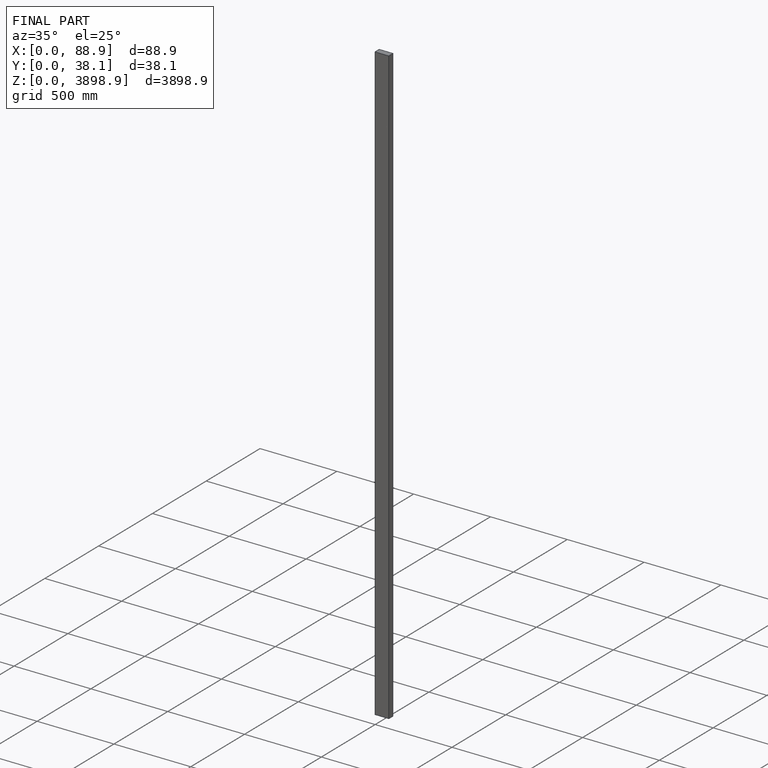
[diagram: finished part — iso view with bounding-box wireframe]
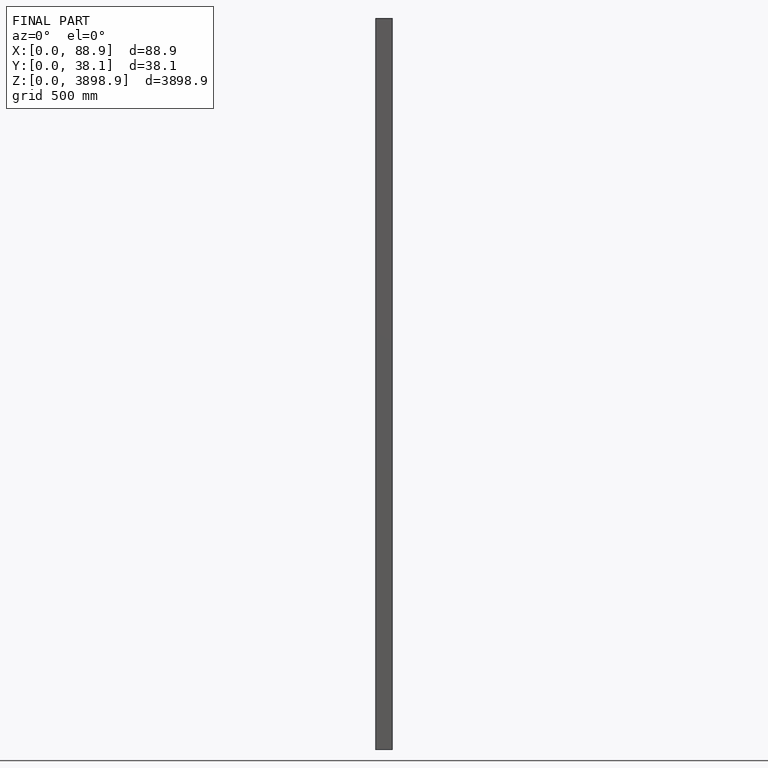
[diagram: finished part — front view with bounding-box wireframe]
